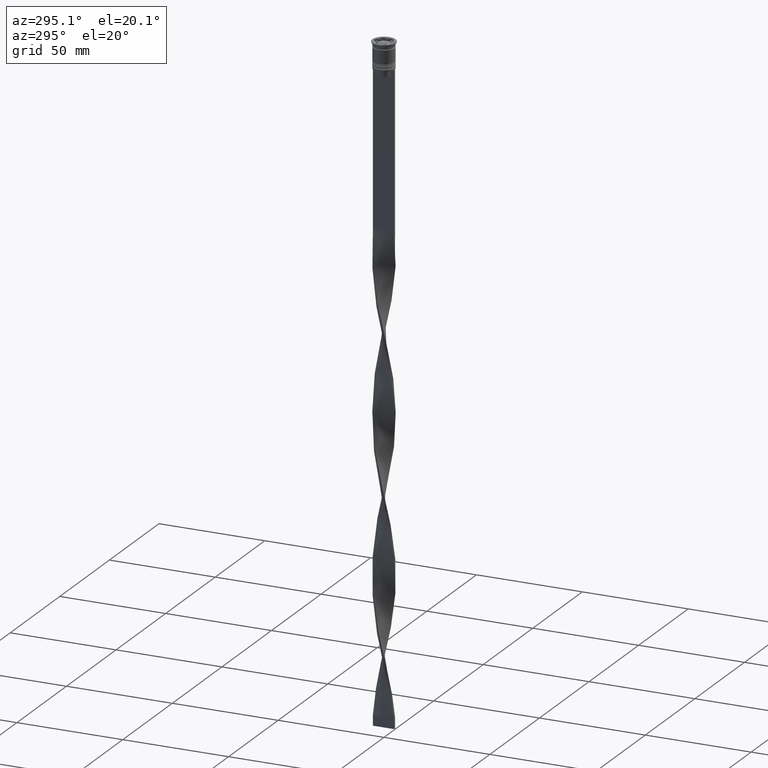
[diagram: clean part render]
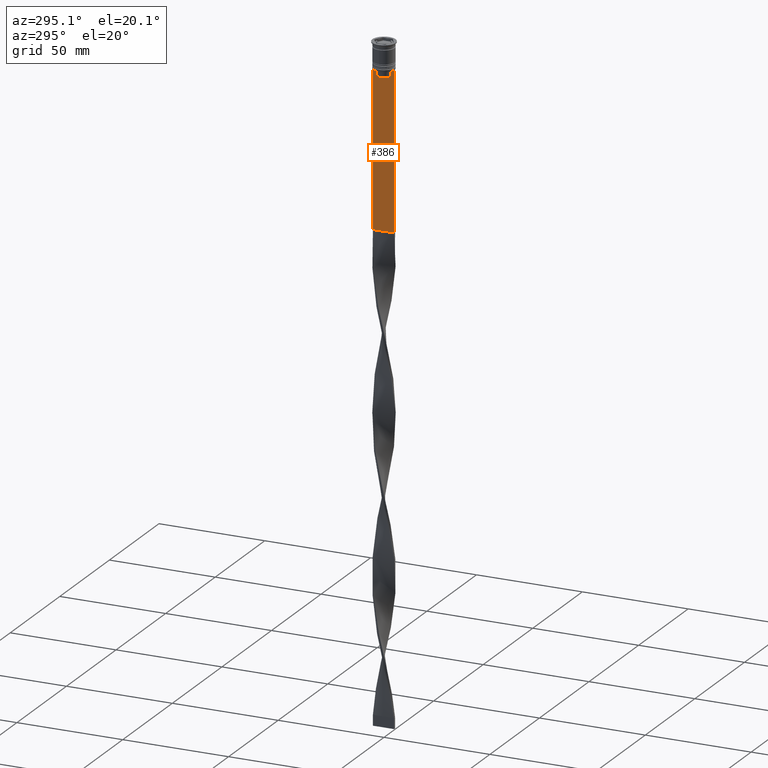
[diagram: same view with one face highlighted and labeled with its STEP entity id]
A machine part, auxiliary view. The second image highlights one B-rep face of the part: STEP entity #386.
In plain terms, the highlighted planar face has unit normal (-1, 0, 0).
Its self-contained STEP definition (entity closure, byte-faithful):
#39 = CARTESIAN_POINT ( 'NONE',  ( -0.5000000000000000000, 5.000000000000000888, -12.50000000000000000 ) ) ;
#80 = B_SPLINE_CURVE_WITH_KNOTS ( 'NONE', 3,
 ( #2849, #3508, #4108, #2533 ),
 .UNSPECIFIED., .F., .F.,
 ( 4, 4 ),
 ( 0.01632394437298965648, 0.01703543518243618576 ),
 .UNSPECIFIED. ) ;
#81 = ORIENTED_EDGE ( 'NONE', *, *, #3698, .F. ) ;
#152 = DIRECTION ( 'NONE',  ( 0.000000000000000000, -1.000000000000000000, 0.000000000000000000 ) ) ;
#261 = CARTESIAN_POINT ( 'NONE',  ( -0.5000000000000000000, -4.999999999999999112, -12.50000000000000000 ) ) ;
#267 = CARTESIAN_POINT ( 'NONE',  ( -0.5000000000000000000, -3.363034344160045652, -15.50000000000000000 ) ) ;
#361 = VECTOR ( 'NONE', #2124, 1000.000000000000000 ) ;
#386 = ADVANCED_FACE ( 'NONE', ( #603 ), #4130, .T. ) ;
#436 = VERTEX_POINT ( 'NONE', #267 ) ;
#459 = EDGE_CURVE ( 'NONE', #3981, #1256, #597, .T. ) ;
#525 = VERTEX_POINT ( 'NONE', #2510 ) ;
#531 = CARTESIAN_POINT ( 'NONE',  ( -0.5000000000000000000, 3.363034344160045652, -15.50000000000000000 ) ) ;
#583 = ORIENTED_EDGE ( 'NONE', *, *, #1123, .F. ) ;
#597 = LINE ( 'NONE', #867, #3028 ) ;
#598 = ORIENTED_EDGE ( 'NONE', *, *, #3346, .F. ) ;
#603 = FACE_OUTER_BOUND ( 'NONE', #2757, .T. ) ;
#656 = LINE ( 'NONE', #3021, #2894 ) ;
#674 = ORIENTED_EDGE ( 'NONE', *, *, #3360, .F. ) ;
#681 = CARTESIAN_POINT ( 'NONE',  ( -0.5000000000000000000, -4.874423042781575788, -12.50000000000000000 ) ) ;
#745 = DIRECTION ( 'NONE',  ( 0.000000000000000000, -1.000000000000000000, 0.000000000000000000 ) ) ;
#770 = LINE ( 'NONE', #1373, #3368 ) ;
#807 = LINE ( 'NONE', #2411, #1226 ) ;
#867 = CARTESIAN_POINT ( 'NONE',  ( -0.5000000000000000000, 3.363034344160045208, 0.000000000000000000 ) ) ;
#870 = VERTEX_POINT ( 'NONE', #1907 ) ;
#884 = LINE ( 'NONE', #261, #2247 ) ;
#965 = VECTOR ( 'NONE', #745, 1000.000000000000000 ) ;
#1017 = VERTEX_POINT ( 'NONE', #39 ) ;
#1121 = CARTESIAN_POINT ( 'NONE',  ( -0.5000000000000000000, -3.363034344160045208, 0.000000000000000000 ) ) ;
#1123 = EDGE_CURVE ( 'NONE', #1426, #3523, #656, .T. ) ;
#1176 = EDGE_CURVE ( 'NONE', #1017, #870, #2425, .T. ) ;
#1208 = VERTEX_POINT ( 'NONE', #2135 ) ;
#1226 = VECTOR ( 'NONE', #4065, 1000.000000000000000 ) ;
#1256 = VERTEX_POINT ( 'NONE', #531 ) ;
#1373 = CARTESIAN_POINT ( 'NONE',  ( -0.5000000000000000000, -4.999999999999999112, -12.50000000000000000 ) ) ;
#1419 = VERTEX_POINT ( 'NONE', #681 ) ;
#1426 = VERTEX_POINT ( 'NONE', #1965 ) ;
#1453 = LINE ( 'NONE', #1121, #361 ) ;
#1515 = AXIS2_PLACEMENT_3D ( 'NONE', #3218, #3837, #2267 ) ;
#1574 = CARTESIAN_POINT ( 'NONE',  ( -0.5000000000000000000, 3.531412678228260216, -12.83345231756357840 ) ) ;
#1687 = LINE ( 'NONE', #2677, #3300 ) ;
#1778 = VECTOR ( 'NONE', #4039, 1000.000000000000000 ) ;
#1816 = ORIENTED_EDGE ( 'NONE', *, *, #2772, .F. ) ;
#1851 = ORIENTED_EDGE ( 'NONE', *, *, #3755, .F. ) ;
#1867 = CARTESIAN_POINT ( 'NONE',  ( -0.5000000000000000000, 5.000000000000000888, -2.450124378879110054 ) ) ;
#1882 = CARTESIAN_POINT ( 'NONE',  ( -0.5000000000000000000, 3.699657965831574913, -12.66677026074361301 ) ) ;
#1895 = EDGE_CURVE ( 'NONE', #3523, #3981, #3668, .T. ) ;
#1903 = CARTESIAN_POINT ( 'NONE',  ( -0.5000000000000000000, -4.999999999999999112, -86.50000000000000000 ) ) ;
#1907 = CARTESIAN_POINT ( 'NONE',  ( -0.5000000000000000000, 5.000000000000000888, -86.50000000000000000 ) ) ;
#1965 = CARTESIAN_POINT ( 'NONE',  ( -0.5000000000000000000, 4.874423042781575788, -12.50000000000000000 ) ) ;
#2040 = CARTESIAN_POINT ( 'NONE',  ( -0.5000000000000000000, -4.999999999999999112, -12.50000000000000000 ) ) ;
#2117 = DIRECTION ( 'NONE',  ( 0.000000000000000000, 0.000000000000000000, -1.000000000000000000 ) ) ;
#2124 = DIRECTION ( 'NONE',  ( -0.000000000000000000, -0.000000000000000000, 1.000000000000000000 ) ) ;
#2135 = CARTESIAN_POINT ( 'NONE',  ( -0.5000000000000000000, -4.999999999999999112, -12.50000000000000000 ) ) ;
#2182 = CARTESIAN_POINT ( 'NONE',  ( -0.5000000000000000000, -3.867815921162742754, -12.50000000000000000 ) ) ;
#2247 = VECTOR ( 'NONE', #3411, 1000.000000000000000 ) ;
#2267 = DIRECTION ( 'NONE',  ( 0.000000000000000000, 0.000000000000000000, 1.000000000000000000 ) ) ;
#2274 = CARTESIAN_POINT ( 'NONE',  ( -0.5000000000000000000, 3.867815921162742754, -12.50000000000000000 ) ) ;
#2311 = CARTESIAN_POINT ( 'NONE',  ( -0.5000000000000000000, -3.363034344160045208, -13.00000000000000178 ) ) ;
#2411 = CARTESIAN_POINT ( 'NONE',  ( -0.5000000000000000000, 3.399999999999998135, -15.50000000000000000 ) ) ;
#2422 = ORIENTED_EDGE ( 'NONE', *, *, #2715, .F. ) ;
#2425 = LINE ( 'NONE', #1867, #3163 ) ;
#2454 = ORIENTED_EDGE ( 'NONE', *, *, #1176, .T. ) ;
#2458 = CARTESIAN_POINT ( 'NONE',  ( -0.5000000000000000000, 3.363034344160045208, -13.00000000000000178 ) ) ;
#2510 = CARTESIAN_POINT ( 'NONE',  ( -0.5000000000000000000, -4.999999999999999112, -86.50000000000000000 ) ) ;
#2533 = CARTESIAN_POINT ( 'NONE',  ( -0.5000000000000000000, -3.867815921162742754, -12.50000000000000000 ) ) ;
#2539 = VERTEX_POINT ( 'NONE', #2311 ) ;
#2589 = CARTESIAN_POINT ( 'NONE',  ( -0.5000000000000000000, 3.867815921162742754, -12.50000000000000000 ) ) ;
#2677 = CARTESIAN_POINT ( 'NONE',  ( -0.5000000000000000000, -4.999999999999999112, -2.450124378879110054 ) ) ;
#2715 = EDGE_CURVE ( 'NONE', #1256, #436, #807, .T. ) ;
#2721 = DIRECTION ( 'NONE',  ( 0.000000000000000000, -1.000000000000000000, 0.000000000000000000 ) ) ;
#2724 = VERTEX_POINT ( 'NONE', #2182 ) ;
#2757 = EDGE_LOOP ( 'NONE', ( #3341, #583, #3356, #2454, #598, #1851, #81, #674, #3671, #1816, #2422, #2989 ) ) ;
#2772 = EDGE_CURVE ( 'NONE', #436, #2539, #1453, .T. ) ;
#2797 = EDGE_CURVE ( 'NONE', #2539, #2724, #80, .T. ) ;
#2836 = CARTESIAN_POINT ( 'NONE',  ( -0.5000000000000000000, 3.363034344160045208, -13.00000000000000178 ) ) ;
#2849 = CARTESIAN_POINT ( 'NONE',  ( -0.5000000000000000000, -3.363034344160045208, -13.00000000000000178 ) ) ;
#2894 = VECTOR ( 'NONE', #152, 1000.000000000000000 ) ;
#2989 = ORIENTED_EDGE ( 'NONE', *, *, #459, .F. ) ;
#3021 = CARTESIAN_POINT ( 'NONE',  ( -0.5000000000000000000, -4.999999999999999112, -12.50000000000000000 ) ) ;
#3028 = VECTOR ( 'NONE', #3771, 1000.000000000000000 ) ;
#3163 = VECTOR ( 'NONE', #2117, 1000.000000000000000 ) ;
#3218 = CARTESIAN_POINT ( 'NONE',  ( -0.5000000000000000000, -4.999999999999999112, -2.450124378879110054 ) ) ;
#3300 = VECTOR ( 'NONE', #3924, 1000.000000000000000 ) ;
#3341 = ORIENTED_EDGE ( 'NONE', *, *, #1895, .F. ) ;
#3346 = EDGE_CURVE ( 'NONE', #525, #870, #3390, .T. ) ;
#3356 = ORIENTED_EDGE ( 'NONE', *, *, #3777, .F. ) ;
#3360 = EDGE_CURVE ( 'NONE', #2724, #1419, #884, .T. ) ;
#3368 = VECTOR ( 'NONE', #2721, 1000.000000000000000 ) ;
#3390 = LINE ( 'NONE', #1903, #1778 ) ;
#3411 = DIRECTION ( 'NONE',  ( 0.000000000000000000, -1.000000000000000000, 0.000000000000000000 ) ) ;
#3508 = CARTESIAN_POINT ( 'NONE',  ( -0.5000000000000000000, -3.531412985305424801, -12.83345201382502765 ) ) ;
#3523 = VERTEX_POINT ( 'NONE', #2589 ) ;
#3610 = LINE ( 'NONE', #2040, #965 ) ;
#3668 = B_SPLINE_CURVE_WITH_KNOTS ( 'NONE', 3,
 ( #2274, #1882, #1574, #2836 ),
 .UNSPECIFIED., .F., .F.,
 ( 4, 4 ),
 ( 0.006644825462451552783, 0.007355321358912435097 ),
 .UNSPECIFIED. ) ;
#3671 = ORIENTED_EDGE ( 'NONE', *, *, #2797, .F. ) ;
#3698 = EDGE_CURVE ( 'NONE', #1419, #1208, #3610, .T. ) ;
#3755 = EDGE_CURVE ( 'NONE', #1208, #525, #1687, .T. ) ;
#3771 = DIRECTION ( 'NONE',  ( 0.000000000000000000, 0.000000000000000000, -1.000000000000000000 ) ) ;
#3777 = EDGE_CURVE ( 'NONE', #1017, #1426, #770, .T. ) ;
#3837 = DIRECTION ( 'NONE',  ( -1.000000000000000000, 0.000000000000000000, 0.000000000000000000 ) ) ;
#3924 = DIRECTION ( 'NONE',  ( 0.000000000000000000, 0.000000000000000000, -1.000000000000000000 ) ) ;
#3981 = VERTEX_POINT ( 'NONE', #2458 ) ;
#4039 = DIRECTION ( 'NONE',  ( 0.000000000000000000, 1.000000000000000000, 0.000000000000000000 ) ) ;
#4065 = DIRECTION ( 'NONE',  ( 0.000000000000000000, -1.000000000000000000, 0.000000000000000000 ) ) ;
#4108 = CARTESIAN_POINT ( 'NONE',  ( -0.5000000000000000000, -3.699658232838647365, -12.66676999593996555 ) ) ;
#4130 = PLANE ( 'NONE',  #1515 ) ;